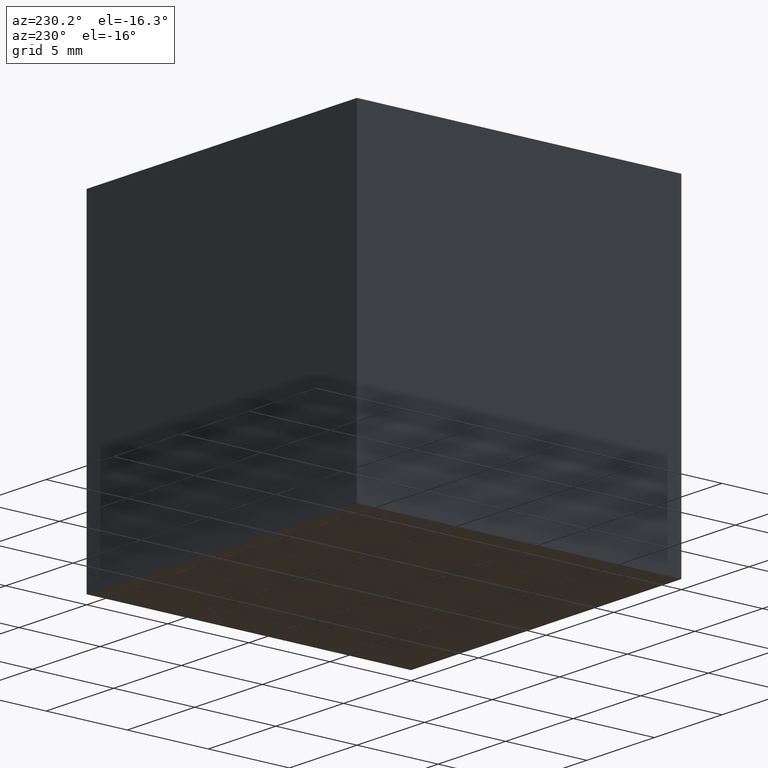
[diagram: clean part render]
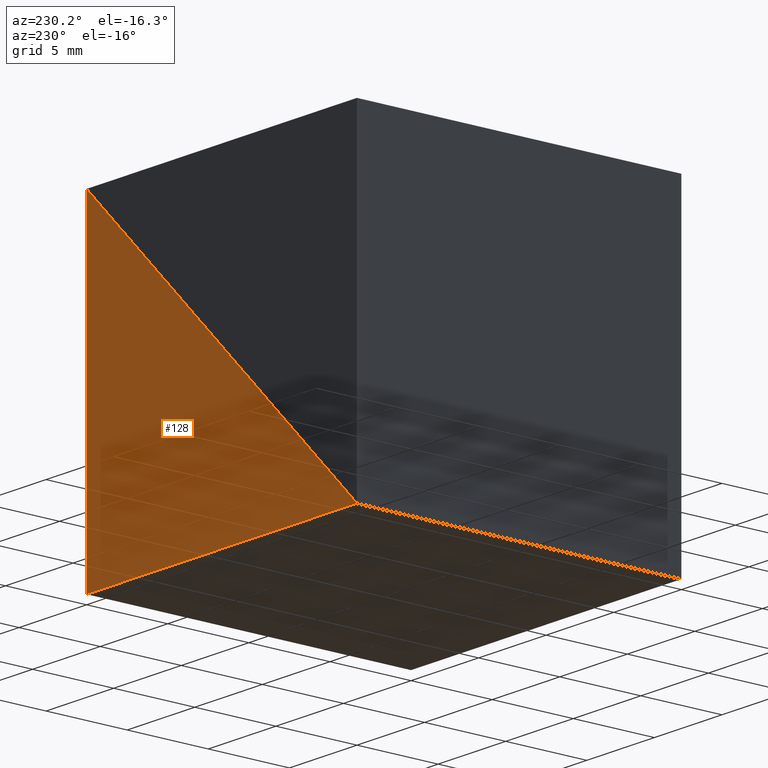
[diagram: same view with one face highlighted and labeled with its STEP entity id]
A machine part, auxiliary view. The second image highlights one B-rep face of the part: STEP entity #128.
In plain terms, the highlighted planar face has unit normal (-0, 1, 0).
Its self-contained STEP definition (entity closure, byte-faithful):
#2 = EDGE_CURVE ( 'NONE', #237, #266, #287, .T. ) ;
#25 = ORIENTED_EDGE ( 'NONE', *, *, #2, .T. ) ;
#28 = DIRECTION ( 'NONE',  ( 0.0000000000000000000, -0.0000000000000000000, 1.000000000000000000 ) ) ;
#32 = DIRECTION ( 'NONE',  ( -1.000000000000000000, 0.0000000000000000000, 1.734723475976807100E-016 ) ) ;
#33 = EDGE_CURVE ( 'NONE', #266, #238, #175, .T. ) ;
#50 = DIRECTION ( 'NONE',  ( -0.0000000000000000000, 1.000000000000000000, 0.0000000000000000000 ) ) ;
#56 = CARTESIAN_POINT ( 'NONE',  ( 0.0000000000000000000, 20.00000000000000000, 0.0000000000000000000 ) ) ;
#64 = EDGE_LOOP ( 'NONE', ( #214, #280, #25 ) ) ;
#70 = VECTOR ( 'NONE', #261, 1000.000000000000000 ) ;
#102 = CARTESIAN_POINT ( 'NONE',  ( -20.00000000000000000, 20.00000000000000000, -19.99999999999999600 ) ) ;
#125 = VECTOR ( 'NONE', #218, 1000.000000000000000 ) ;
#128 = ADVANCED_FACE ( 'NONE', ( #164 ), #149, .T. ) ;
#135 = EDGE_CURVE ( 'NONE', #238, #237, #265, .T. ) ;
#149 = PLANE ( 'NONE',  #151 ) ;
#151 = AXIS2_PLACEMENT_3D ( 'NONE', #263, #50, #28 ) ;
#164 = FACE_OUTER_BOUND ( 'NONE', #64, .T. ) ;
#175 = LINE ( 'NONE', #102, #125 ) ;
#180 = CARTESIAN_POINT ( 'NONE',  ( 0.0000000000000000000, 20.00000000000000000, -20.00000000000000000 ) ) ;
#185 = VECTOR ( 'NONE', #32, 1000.000000000000000 ) ;
#214 = ORIENTED_EDGE ( 'NONE', *, *, #33, .T. ) ;
#218 = DIRECTION ( 'NONE',  ( 0.7071067811865475700, 0.0000000000000000000, 0.7071067811865474600 ) ) ;
#232 = CARTESIAN_POINT ( 'NONE',  ( -20.00000000000000000, 20.00000000000000000, -19.99999999999999600 ) ) ;
#237 = VERTEX_POINT ( 'NONE', #294 ) ;
#238 = VERTEX_POINT ( 'NONE', #56 ) ;
#261 = DIRECTION ( 'NONE',  ( 0.0000000000000000000, 0.0000000000000000000, -1.000000000000000000 ) ) ;
#263 = CARTESIAN_POINT ( 'NONE',  ( 0.0000000000000000000, 20.00000000000000000, 0.0000000000000000000 ) ) ;
#265 = LINE ( 'NONE', #282, #70 ) ;
#266 = VERTEX_POINT ( 'NONE', #232 ) ;
#280 = ORIENTED_EDGE ( 'NONE', *, *, #135, .T. ) ;
#282 = CARTESIAN_POINT ( 'NONE',  ( 0.0000000000000000000, 20.00000000000000000, 0.0000000000000000000 ) ) ;
#287 = LINE ( 'NONE', #180, #185 ) ;
#294 = CARTESIAN_POINT ( 'NONE',  ( 0.0000000000000000000, 20.00000000000000000, -20.00000000000000000 ) ) ;